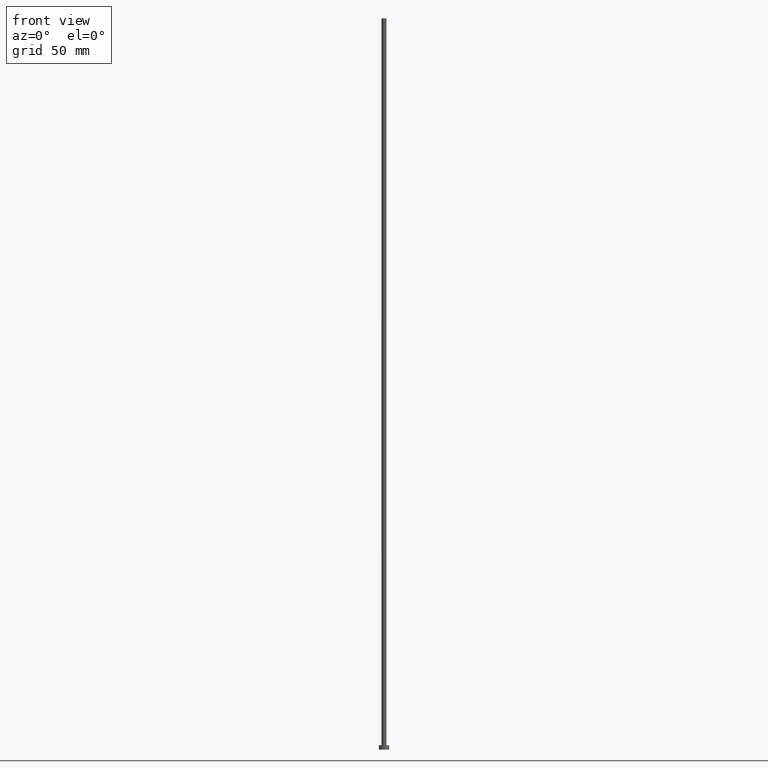
[diagram: clean part render]
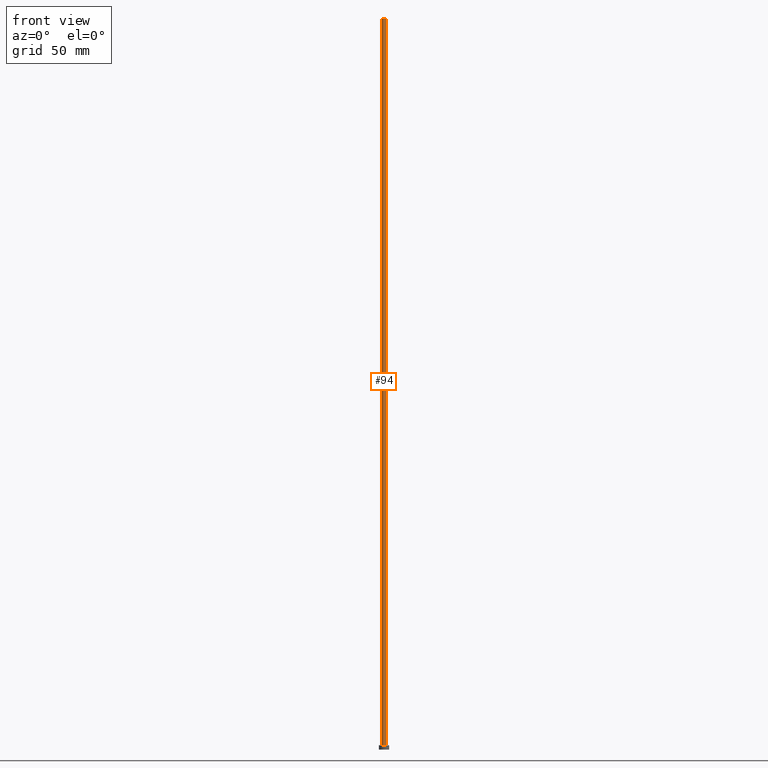
[diagram: same view with one face highlighted and labeled with its STEP entity id]
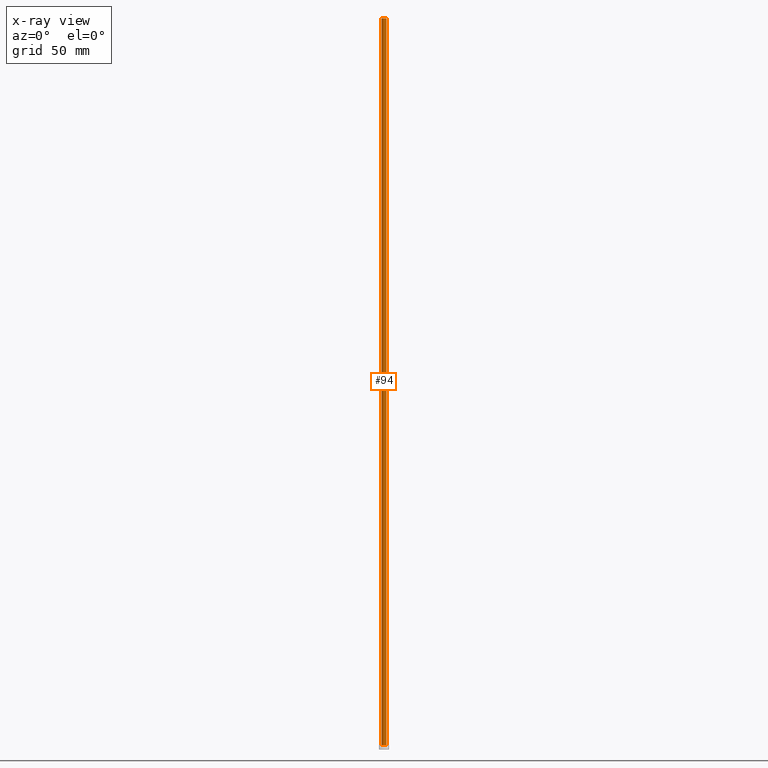
[diagram: x-ray of the same camera — body ghosted, the highlighted face saturated]
A machine part, front view. The second image highlights one B-rep face of the part: STEP entity #94.
The next image is the same camera in x-ray: the body ghosted, the highlighted face saturated — about 0% of this face is hidden behind the body in this view.
In plain terms, the highlighted cylindrical surface (edge-blend (fillet) strip) has radius 1.75 mm, axis along (-0, -0, -1).
Its self-contained STEP definition (entity closure, byte-faithful):
#8 = LINE ( 'NONE', #84, #96 ) ;
#25 = ORIENTED_EDGE ( 'NONE', *, *, #106, .T. ) ;
#49 = CARTESIAN_POINT ( 'NONE',  ( 1.750000000000000000, 2.143131898507867804E-16, 500.0000000000000000 ) ) ;
#60 = DIRECTION ( 'NONE',  ( 0.000000000000000000, 0.000000000000000000, 1.000000000000000000 ) ) ;
#61 = CIRCLE ( 'NONE', #143, 1.750000000000000000 ) ;
#62 = CARTESIAN_POINT ( 'NONE',  ( -1.750000000000000000, 0.000000000000000000, 3.000000000000000000 ) ) ;
#65 = ORIENTED_EDGE ( 'NONE', *, *, #178, .T. ) ;
#66 = DIRECTION ( 'NONE',  ( -0.000000000000000000, -0.000000000000000000, -1.000000000000000000 ) ) ;
#79 = CARTESIAN_POINT ( 'NONE',  ( -1.750000000000000000, 0.000000000000000000, 500.0000000000000000 ) ) ;
#84 = CARTESIAN_POINT ( 'NONE',  ( 1.750000000000000000, 2.143131898507867804E-16, 500.0000000000000000 ) ) ;
#90 = AXIS2_PLACEMENT_3D ( 'NONE', #194, #131, #128 ) ;
#94 = ADVANCED_FACE ( 'NONE', ( #185 ), #249, .T. ) ;
#95 = VERTEX_POINT ( 'NONE', #79 ) ;
#96 = VECTOR ( 'NONE', #219, 1000.000000000000000 ) ;
#102 = AXIS2_PLACEMENT_3D ( 'NONE', #160, #66, #163 ) ;
#106 = EDGE_CURVE ( 'NONE', #200, #204, #61, .T. ) ;
#128 = DIRECTION ( 'NONE',  ( 1.000000000000000000, 0.000000000000000000, 0.000000000000000000 ) ) ;
#129 = EDGE_LOOP ( 'NONE', ( #161, #151, #65, #25 ) ) ;
#131 = DIRECTION ( 'NONE',  ( 0.000000000000000000, 0.000000000000000000, 1.000000000000000000 ) ) ;
#142 = DIRECTION ( 'NONE',  ( -0.000000000000000000, -0.000000000000000000, -1.000000000000000000 ) ) ;
#143 = AXIS2_PLACEMENT_3D ( 'NONE', #179, #60, #182 ) ;
#151 = ORIENTED_EDGE ( 'NONE', *, *, #236, .F. ) ;
#160 = CARTESIAN_POINT ( 'NONE',  ( 0.000000000000000000, 0.000000000000000000, 500.0000000000000000 ) ) ;
#161 = ORIENTED_EDGE ( 'NONE', *, *, #218, .F. ) ;
#163 = DIRECTION ( 'NONE',  ( -1.000000000000000000, 0.000000000000000000, 0.000000000000000000 ) ) ;
#178 = EDGE_CURVE ( 'NONE', #95, #200, #245, .T. ) ;
#179 = CARTESIAN_POINT ( 'NONE',  ( 0.000000000000000000, 0.000000000000000000, 3.000000000000000000 ) ) ;
#181 = VECTOR ( 'NONE', #142, 1000.000000000000000 ) ;
#182 = DIRECTION ( 'NONE',  ( 1.000000000000000000, 0.000000000000000000, 0.000000000000000000 ) ) ;
#184 = CARTESIAN_POINT ( 'NONE',  ( -1.750000000000000000, 0.000000000000000000, 500.0000000000000000 ) ) ;
#185 = FACE_OUTER_BOUND ( 'NONE', #129, .T. ) ;
#194 = CARTESIAN_POINT ( 'NONE',  ( 0.000000000000000000, 0.000000000000000000, 500.0000000000000000 ) ) ;
#200 = VERTEX_POINT ( 'NONE', #62 ) ;
#204 = VERTEX_POINT ( 'NONE', #226 ) ;
#218 = EDGE_CURVE ( 'NONE', #227, #204, #8, .T. ) ;
#219 = DIRECTION ( 'NONE',  ( -0.000000000000000000, -0.000000000000000000, -1.000000000000000000 ) ) ;
#226 = CARTESIAN_POINT ( 'NONE',  ( 1.750000000000000000, 2.143131898507867804E-16, 3.000000000000000000 ) ) ;
#227 = VERTEX_POINT ( 'NONE', #49 ) ;
#236 = EDGE_CURVE ( 'NONE', #95, #227, #240, .T. ) ;
#240 = CIRCLE ( 'NONE', #90, 1.750000000000000000 ) ;
#245 = LINE ( 'NONE', #184, #181 ) ;
#249 = CYLINDRICAL_SURFACE ( 'NONE', #102, 1.750000000000000000 ) ;